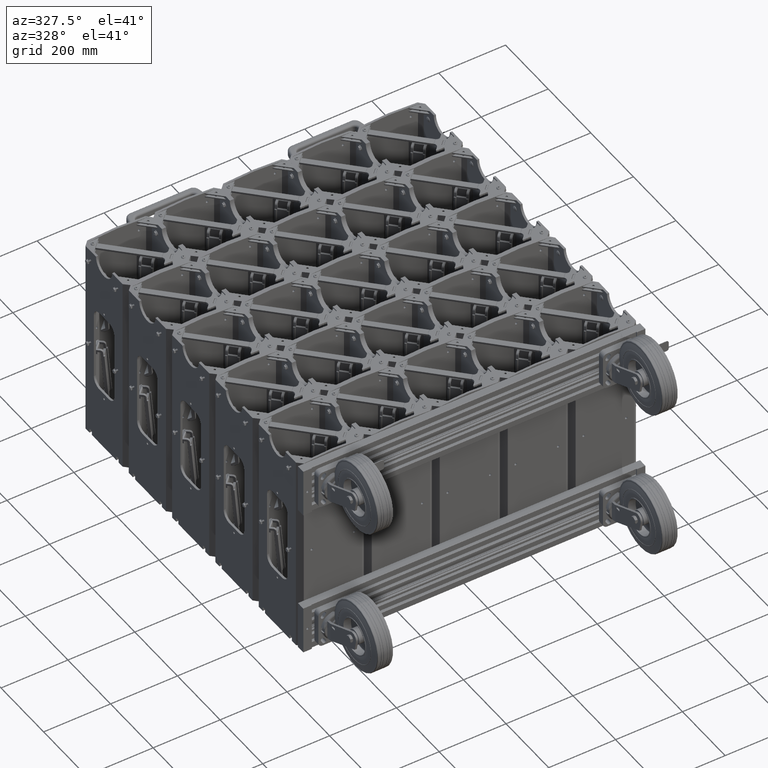
[diagram: clean part render]
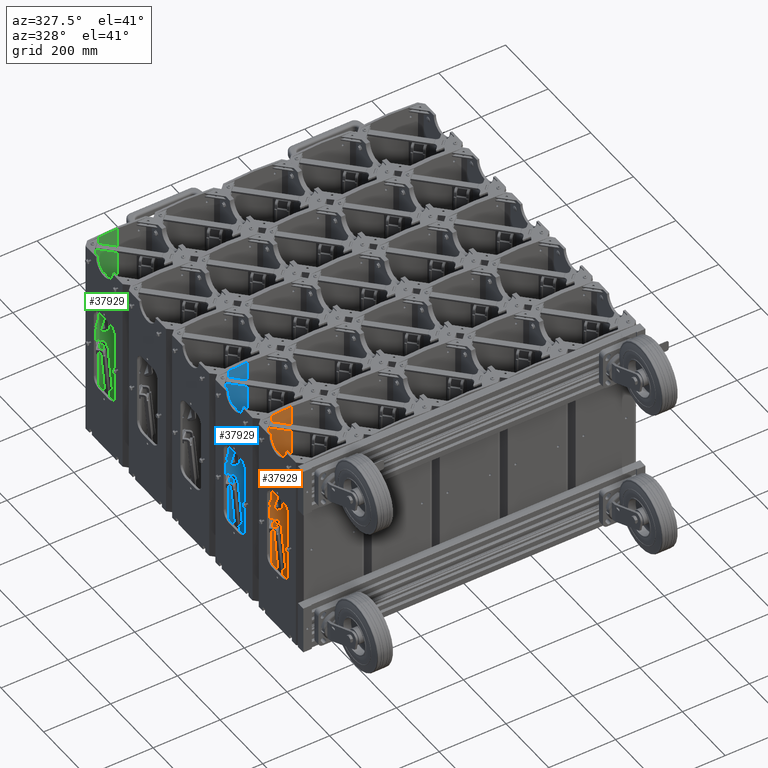
[diagram: same view with three faces highlighted in distinct colors, each labeled with its STEP entity id]
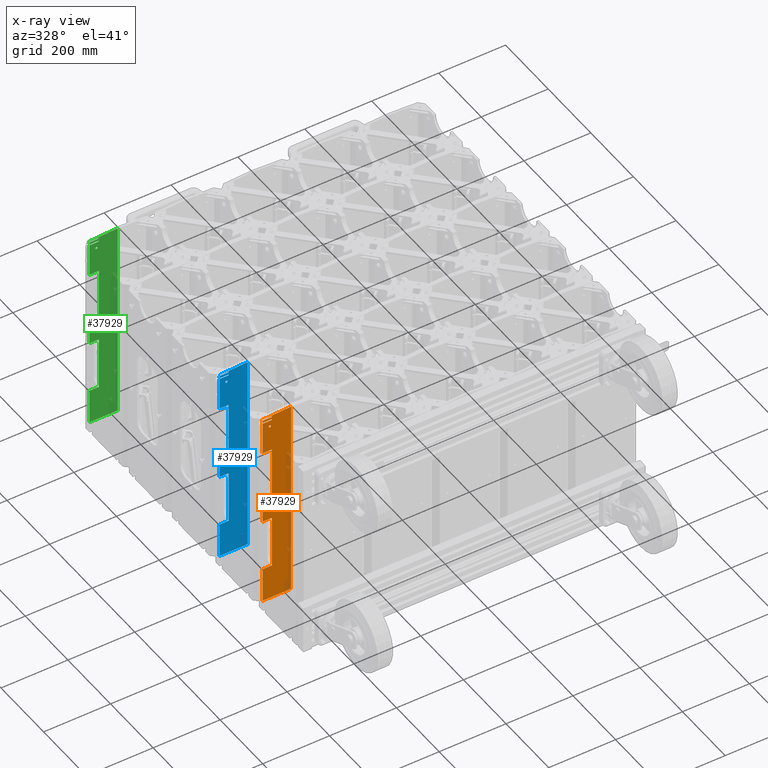
[diagram: x-ray of the same camera — body ghosted, the three highlighted faces saturated]
A machine part, auxiliary view with three faces highlighted in distinct colors.
The next image is the same camera in x-ray (body ghosted, the three faces saturated) — at least one of them is partly hidden behind the body in this view.
Their STEP definitions:

[orange] entity #37929 — the highlighted planar face has unit normal (-0, -1, -0).
#2273 = CIRCLE ( 'NONE', #42122, 0.1330000000000004800 ) ;
#2285 = CIRCLE ( 'NONE', #42127, 0.1329999999999999200 ) ;
#2338 = LINE ( 'NONE', #3950, #2340 ) ;
#2340 = VECTOR ( 'NONE', #3959, 39.37007874015748100 ) ;
#2343 = LINE ( 'NONE', #3964, #2352 ) ;
#2345 = LINE ( 'NONE', #3970, #2353 ) ;
#2347 = LINE ( 'NONE', #3988, #2372 ) ;
#2352 = VECTOR ( 'NONE', #3972, 39.37007874015748100 ) ;
#2353 = VECTOR ( 'NONE', #3974, 39.37007874015748100 ) ;
#2354 = LINE ( 'NONE', #3984, #2360 ) ;
#2355 = LINE ( 'NONE', #3975, #2356 ) ;
#2356 = VECTOR ( 'NONE', #3976, 39.37007874015748900 ) ;
#2357 = LINE ( 'NONE', #3977, #2358 ) ;
#2358 = VECTOR ( 'NONE', #3978, 39.37007874015748100 ) ;
#2359 = LINE ( 'NONE', #3986, #2366 ) ;
#2360 = VECTOR ( 'NONE', #3985, 39.37007874015748100 ) ;
#2361 = CIRCLE ( 'NONE', #42147, 0.1329999999999999200 ) ;
#2362 = LINE ( 'NONE', #3979, #2364 ) ;
#2363 = CIRCLE ( 'NONE', #42146, 0.1330000000000004800 ) ;
#2364 = VECTOR ( 'NONE', #3987, 39.37007874015748100 ) ;
#2365 = LINE ( 'NONE', #3994, #2374 ) ;
#2366 = VECTOR ( 'NONE', #3989, 39.37007874015748100 ) ;
#2367 = LINE ( 'NONE', #3996, #2376 ) ;
#2368 = LINE ( 'NONE', #3990, #2369 ) ;
#2369 = VECTOR ( 'NONE', #3991, 39.37007874015748100 ) ;
#2370 = LINE ( 'NONE', #3992, #2371 ) ;
#2371 = VECTOR ( 'NONE', #3993, 39.37007874015748100 ) ;
#2372 = VECTOR ( 'NONE', #3995, 39.37007874015748100 ) ;
#2373 = LINE ( 'NONE', #3998, #2384 ) ;
#2374 = VECTOR ( 'NONE', #3997, 39.37007874015748100 ) ;
#2376 = VECTOR ( 'NONE', #3999, 39.37007874015748100 ) ;
#2378 = LINE ( 'NONE', #4000, #2379 ) ;
#2379 = VECTOR ( 'NONE', #4001, 39.37007874015748100 ) ;
#2380 = LINE ( 'NONE', #4002, #2381 ) ;
#2381 = VECTOR ( 'NONE', #4003, 39.37007874015748100 ) ;
#2382 = LINE ( 'NONE', #4004, #2383 ) ;
#2383 = VECTOR ( 'NONE', #4005, 39.37007874015748100 ) ;
#2384 = VECTOR ( 'NONE', #4007, 39.37007874015748100 ) ;
#2386 = LINE ( 'NONE', #4008, #2387 ) ;
#2387 = VECTOR ( 'NONE', #4009, 39.37007874015748100 ) ;
#2388 = LINE ( 'NONE', #4010, #2389 ) ;
#2389 = VECTOR ( 'NONE', #4011, 39.37007874015748100 ) ;
#2390 = LINE ( 'NONE', #4012, #2391 ) ;
#2391 = VECTOR ( 'NONE', #4013, 39.37007874015748100 ) ;
#3798 = CARTESIAN_POINT ( 'NONE',  ( 3.750000000000002200, -2.500000000000039500, -0.1745312500000002200 ) ) ;
#3800 = DIRECTION ( 'NONE',  ( -1.000000000000000000, -1.365923996832082300E-016, 0.0000000000000000000 ) ) ;
#3802 = DIRECTION ( 'NONE',  ( 0.0000000000000000000, -1.000000000000000000, 0.0000000000000000000 ) ) ;
#3842 = CARTESIAN_POINT ( 'NONE',  ( 3.750000000000251400, -2.500000000000039500, -10.67453124999990000 ) ) ;
#3845 = DIRECTION ( 'NONE',  ( -1.000000000000000000, -1.365923996832082300E-016, 0.0000000000000000000 ) ) ;
#3847 = DIRECTION ( 'NONE',  ( 0.0000000000000000000, -1.000000000000000000, 0.0000000000000000000 ) ) ;
#3950 = CARTESIAN_POINT ( 'NONE',  ( 3.749999999999976000, -6.556435184794231400E-014, 12.10500000000010000 ) ) ;
#3959 = DIRECTION ( 'NONE',  ( 0.0000000000000000000, 0.0000000000000000000, -1.000000000000000000 ) ) ;
#3964 = CARTESIAN_POINT ( 'NONE',  ( 3.750000000000142100, -2.240846073967664800, -11.40812499999990100 ) ) ;
#3970 = CARTESIAN_POINT ( 'NONE',  ( 3.750000000000225200, -3.333946609406774900, -11.90812499999990100 ) ) ;
#3971 = CARTESIAN_POINT ( 'NONE',  ( 3.750000000000002200, -2.500000000000039500, -0.1745312500000002200 ) ) ;
#3972 = DIRECTION ( 'NONE',  ( 0.0000000000000000000, 0.0000000000000000000, -1.000000000000000000 ) ) ;
#3973 = CARTESIAN_POINT ( 'NONE',  ( 3.750000000000251400, -2.500000000000039500, -10.67453124999990000 ) ) ;
#3974 = DIRECTION ( 'NONE',  ( -4.930380657631323800E-030, 1.000000000000000000, 1.094764425253763300E-047 ) ) ;
#3975 = CARTESIAN_POINT ( 'NONE',  ( 3.750000000000212300, -4.000000000000048800, -11.89499999999990000 ) ) ;
#3976 = DIRECTION ( 'NONE',  ( -1.364045465210469600E-016, 0.9986247173150795100, -0.05242779765904170800 ) ) ;
#3977 = CARTESIAN_POINT ( 'NONE',  ( 3.749999999999818800, 3.999999999999948500, 11.85500000000010000 ) ) ;
#3978 = DIRECTION ( 'NONE',  ( -1.365923996832180900E-016, 1.000000000000000000, 1.094764425253763300E-047 ) ) ;
#3979 = CARTESIAN_POINT ( 'NONE',  ( 3.750000000000225200, -3.333946609406774900, -11.79112499999990000 ) ) ;
#3980 = DIRECTION ( 'NONE',  ( -1.000000000000000000, -1.365923996832082300E-016, 0.0000000000000000000 ) ) ;
#3981 = DIRECTION ( 'NONE',  ( 0.0000000000000000000, -1.000000000000000000, 0.0000000000000000000 ) ) ;
#3982 = DIRECTION ( 'NONE',  ( -1.000000000000000000, -1.365923996832082300E-016, 0.0000000000000000000 ) ) ;
#3983 = DIRECTION ( 'NONE',  ( 0.0000000000000000000, -1.000000000000000000, 0.0000000000000000000 ) ) ;
#3984 = CARTESIAN_POINT ( 'NONE',  ( 3.749999999999976000, -3.333946609406774900, 12.10500000000010000 ) ) ;
#3985 = DIRECTION ( 'NONE',  ( -0.0000000000000000000, -0.0000000000000000000, -1.000000000000000000 ) ) ;
#3986 = CARTESIAN_POINT ( 'NONE',  ( 3.750000000000225200, -3.333946609406774900, -11.79112499999990000 ) ) ;
#3987 = DIRECTION ( 'NONE',  ( -4.930380657631323800E-030, 1.000000000000000000, 1.094764425253763300E-047 ) ) ;
#3988 = CARTESIAN_POINT ( 'NONE',  ( 3.750000000000225200, -3.333946609406774900, -11.40812499999990100 ) ) ;
#3989 = DIRECTION ( 'NONE',  ( 0.0000000000000000000, 0.0000000000000000000, 1.000000000000000000 ) ) ;
#3990 = CARTESIAN_POINT ( 'NONE',  ( 3.750000000000225200, -3.333946609406774900, -11.52512499999990000 ) ) ;
#3991 = DIRECTION ( 'NONE',  ( -4.930380657631323800E-030, 1.000000000000000000, 1.094764425253763300E-047 ) ) ;
#3992 = CARTESIAN_POINT ( 'NONE',  ( 3.750000000000142100, -2.240846073967664800, -11.40812499999990100 ) ) ;
#3993 = DIRECTION ( 'NONE',  ( 0.0000000000000000000, 0.0000000000000000000, -1.000000000000000000 ) ) ;
#3994 = CARTESIAN_POINT ( 'NONE',  ( 3.749999999999976000, -3.333946609406774900, 12.10500000000010000 ) ) ;
#3995 = DIRECTION ( 'NONE',  ( -4.930380657631323800E-030, 1.000000000000000000, 1.094764425253763300E-047 ) ) ;
#3996 = CARTESIAN_POINT ( 'NONE',  ( 3.749999999999971600, -3.333946609406774900, -7.533125000000018700 ) ) ;
#3997 = DIRECTION ( 'NONE',  ( -0.0000000000000000000, -0.0000000000000000000, -1.000000000000000000 ) ) ;
#3998 = CARTESIAN_POINT ( 'NONE',  ( 3.750000000000032900, -3.333946609406774900, 1.466875000000000800 ) ) ;
#3999 = DIRECTION ( 'NONE',  ( -4.930380657631323800E-030, 1.000000000000000000, 1.094764425253763300E-047 ) ) ;
#4000 = CARTESIAN_POINT ( 'NONE',  ( 3.749999999999980500, -2.240846073967664800, -1.283124999999999200 ) ) ;
#4001 = DIRECTION ( 'NONE',  ( 0.0000000000000000000, 0.0000000000000000000, -1.000000000000000000 ) ) ;
#4002 = CARTESIAN_POINT ( 'NONE',  ( 3.750000000000002200, -3.333946609406774900, -1.283124999999999200 ) ) ;
#4003 = DIRECTION ( 'NONE',  ( -4.930380657631323800E-030, 1.000000000000000000, 1.094764425253763300E-047 ) ) ;
#4004 = CARTESIAN_POINT ( 'NONE',  ( 3.749999999999976000, -3.333946609406774900, 12.10500000000010000 ) ) ;
#4005 = DIRECTION ( 'NONE',  ( -0.0000000000000000000, -0.0000000000000000000, -1.000000000000000000 ) ) ;
#4007 = DIRECTION ( 'NONE',  ( -4.930380657631323800E-030, 1.000000000000000000, 1.094764425253763300E-047 ) ) ;
#4008 = CARTESIAN_POINT ( 'NONE',  ( 3.750000000000137700, -2.240846073967664800, 7.716874999999981300 ) ) ;
#4009 = DIRECTION ( 'NONE',  ( 0.0000000000000000000, 0.0000000000000000000, -1.000000000000000000 ) ) ;
#4010 = CARTESIAN_POINT ( 'NONE',  ( 3.750000000000225200, -3.333946609406774900, 7.716874999999981300 ) ) ;
#4011 = DIRECTION ( 'NONE',  ( -4.930380657631323800E-030, 1.000000000000000000, 1.094764425253763300E-047 ) ) ;
#4012 = CARTESIAN_POINT ( 'NONE',  ( 3.749999999999976000, -3.333946609406774900, 12.10500000000010000 ) ) ;
#4013 = DIRECTION ( 'NONE',  ( -0.0000000000000000000, -0.0000000000000000000, -1.000000000000000000 ) ) ;
#6786 = FACE_BOUND ( 'NONE', #27257, .T. ) ;
#6793 = FACE_BOUND ( 'NONE', #31813, .T. ) ;
#6795 = FACE_OUTER_BOUND ( 'NONE', #31820, .T. ) ;
#8275 = CARTESIAN_POINT ( 'NONE',  ( 3.749999999999818800, 3.999999999999948500, 12.10500000000010000 ) ) ;
#8282 = PLANE ( 'NONE',  #8948 ) ;
#8283 = DIRECTION ( 'NONE',  ( -1.000000000000000000, -1.365923996832180900E-016, -1.079521069386805600E-076 ) ) ;
#8284 = DIRECTION ( 'NONE',  ( 1.365923996832180900E-016, -1.000000000000000000, -1.094764425253763300E-047 ) ) ;
#8948 = AXIS2_PLACEMENT_3D ( 'NONE', #8275, #8283, #8284 ) ;
#18635 = VERTEX_POINT ( 'NONE', #33816 ) ;
#18636 = VERTEX_POINT ( 'NONE', #33817 ) ;
#18643 = VERTEX_POINT ( 'NONE', #33824 ) ;
#18644 = VERTEX_POINT ( 'NONE', #33825 ) ;
#18674 = VERTEX_POINT ( 'NONE', #33855 ) ;
#18675 = VERTEX_POINT ( 'NONE', #33856 ) ;
#18677 = VERTEX_POINT ( 'NONE', #33858 ) ;
#19539 = VERTEX_POINT ( 'NONE', #34198 ) ;
#19540 = VERTEX_POINT ( 'NONE', #34202 ) ;
#19541 = VERTEX_POINT ( 'NONE', #34203 ) ;
#19542 = VERTEX_POINT ( 'NONE', #34204 ) ;
#19543 = VERTEX_POINT ( 'NONE', #34205 ) ;
#19544 = VERTEX_POINT ( 'NONE', #34206 ) ;
#19545 = VERTEX_POINT ( 'NONE', #34207 ) ;
#19546 = VERTEX_POINT ( 'NONE', #34208 ) ;
#19547 = VERTEX_POINT ( 'NONE', #34201 ) ;
#19548 = VERTEX_POINT ( 'NONE', #34209 ) ;
#19549 = VERTEX_POINT ( 'NONE', #34210 ) ;
#19550 = VERTEX_POINT ( 'NONE', #34211 ) ;
#19551 = VERTEX_POINT ( 'NONE', #34212 ) ;
#19552 = VERTEX_POINT ( 'NONE', #34213 ) ;
#19553 = VERTEX_POINT ( 'NONE', #34214 ) ;
#21231 = VERTEX_POINT ( 'NONE', #34862 ) ;
#21232 = VERTEX_POINT ( 'NONE', #34865 ) ;
#27257 = EDGE_LOOP ( 'NONE', ( #30701, #30703 ) ) ;
#29101 = EDGE_CURVE ( 'NONE', #18635, #18636, #2273, .T. ) ;
#29109 = EDGE_CURVE ( 'NONE', #18643, #18644, #2285, .T. ) ;
#29145 = EDGE_CURVE ( 'NONE', #18675, #18674, #2338, .T. ) ;
#29151 = EDGE_CURVE ( 'NONE', #19540, #19539, #2343, .T. ) ;
#29152 = EDGE_CURVE ( 'NONE', #21232, #19539, #2345, .T. ) ;
#29153 = EDGE_CURVE ( 'NONE', #21231, #18674, #2355, .T. ) ;
#29154 = EDGE_CURVE ( 'NONE', #18677, #18675, #2357, .T. ) ;
#29155 = EDGE_CURVE ( 'NONE', #18644, #18643, #2361, .T. ) ;
#29156 = EDGE_CURVE ( 'NONE', #18636, #18635, #2363, .T. ) ;
#29157 = EDGE_CURVE ( 'NONE', #21232, #21231, #2354, .T. ) ;
#29158 = EDGE_CURVE ( 'NONE', #19541, #19540, #2362, .T. ) ;
#29159 = EDGE_CURVE ( 'NONE', #19541, #19542, #2359, .T. ) ;
#29160 = EDGE_CURVE ( 'NONE', #19542, #19543, #2368, .T. ) ;
#29161 = EDGE_CURVE ( 'NONE', #19544, #19543, #2370, .T. ) ;
#29162 = EDGE_CURVE ( 'NONE', #19545, #19544, #2347, .T. ) ;
#29163 = EDGE_CURVE ( 'NONE', #19546, #19545, #2365, .T. ) ;
#29164 = EDGE_CURVE ( 'NONE', #19546, #19547, #2367, .T. ) ;
#29165 = EDGE_CURVE ( 'NONE', #19548, #19547, #2378, .T. ) ;
#29166 = EDGE_CURVE ( 'NONE', #19549, #19548, #2380, .T. ) ;
#29167 = EDGE_CURVE ( 'NONE', #19550, #19549, #2382, .T. ) ;
#29168 = EDGE_CURVE ( 'NONE', #19550, #19551, #2373, .T. ) ;
#29169 = EDGE_CURVE ( 'NONE', #19552, #19551, #2386, .T. ) ;
#29170 = EDGE_CURVE ( 'NONE', #19553, #19552, #2388, .T. ) ;
#29171 = EDGE_CURVE ( 'NONE', #18677, #19553, #2390, .T. ) ;
#30701 = ORIENTED_EDGE ( 'NONE', *, *, #29155, .F. ) ;
#30703 = ORIENTED_EDGE ( 'NONE', *, *, #29109, .F. ) ;
#30705 = ORIENTED_EDGE ( 'NONE', *, *, #29156, .F. ) ;
#30707 = ORIENTED_EDGE ( 'NONE', *, *, #29101, .F. ) ;
#30709 = ORIENTED_EDGE ( 'NONE', *, *, #29154, .T. ) ;
#30711 = ORIENTED_EDGE ( 'NONE', *, *, #29145, .T. ) ;
#30713 = ORIENTED_EDGE ( 'NONE', *, *, #29153, .F. ) ;
#30715 = ORIENTED_EDGE ( 'NONE', *, *, #29157, .F. ) ;
#30717 = ORIENTED_EDGE ( 'NONE', *, *, #29152, .T. ) ;
#30719 = ORIENTED_EDGE ( 'NONE', *, *, #29151, .F. ) ;
#30721 = ORIENTED_EDGE ( 'NONE', *, *, #29158, .F. ) ;
#30723 = ORIENTED_EDGE ( 'NONE', *, *, #29159, .T. ) ;
#30725 = ORIENTED_EDGE ( 'NONE', *, *, #29160, .T. ) ;
#30727 = ORIENTED_EDGE ( 'NONE', *, *, #29161, .F. ) ;
#30729 = ORIENTED_EDGE ( 'NONE', *, *, #29162, .F. ) ;
#30730 = ORIENTED_EDGE ( 'NONE', *, *, #29163, .F. ) ;
#30732 = ORIENTED_EDGE ( 'NONE', *, *, #29164, .T. ) ;
#30734 = ORIENTED_EDGE ( 'NONE', *, *, #29165, .F. ) ;
#30735 = ORIENTED_EDGE ( 'NONE', *, *, #29166, .F. ) ;
#30737 = ORIENTED_EDGE ( 'NONE', *, *, #29167, .F. ) ;
#30739 = ORIENTED_EDGE ( 'NONE', *, *, #29168, .T. ) ;
#30741 = ORIENTED_EDGE ( 'NONE', *, *, #29169, .F. ) ;
#30743 = ORIENTED_EDGE ( 'NONE', *, *, #29170, .F. ) ;
#30745 = ORIENTED_EDGE ( 'NONE', *, *, #29171, .F. ) ;
#31813 = EDGE_LOOP ( 'NONE', ( #30705, #30707 ) ) ;
#31820 = EDGE_LOOP ( 'NONE', ( #30709, #30711, #30713, #30715, #30717, #30719, #30721, #30723, #30725, #30727, #30729, #30730, #30732, #30734, #30735, #30737, #30739, #30741, #30743, #30745 ) ) ;
#33816 = CARTESIAN_POINT ( 'NONE',  ( 3.750000000000002200, -2.367000000000039100, -0.1745312500000018000 ) ) ;
#33817 = CARTESIAN_POINT ( 'NONE',  ( 3.750000000000002200, -2.633000000000040000, -0.1745312500000002200 ) ) ;
#33824 = CARTESIAN_POINT ( 'NONE',  ( 3.750000000000251400, -2.367000000000040000, -10.67453124999990000 ) ) ;
#33825 = CARTESIAN_POINT ( 'NONE',  ( 3.750000000000251400, -2.633000000000039500, -10.67453124999990000 ) ) ;
#33855 = CARTESIAN_POINT ( 'NONE',  ( 3.750000000000002200, -6.556435184794231400E-014, -12.10499999999989900 ) ) ;
#33856 = CARTESIAN_POINT ( 'NONE',  ( 3.749999999999976000, -6.556435184794231400E-014, 11.85500000000010000 ) ) ;
#33858 = CARTESIAN_POINT ( 'NONE',  ( 3.749999999999976000, -3.333946609406774900, 11.85500000000010000 ) ) ;
#34198 = CARTESIAN_POINT ( 'NONE',  ( 3.750000000000142100, -2.240846073967664800, -11.90812499999990100 ) ) ;
#34201 = CARTESIAN_POINT ( 'NONE',  ( 3.749999999999971600, -2.240846073967664800, -7.533125000000018700 ) ) ;
#34202 = CARTESIAN_POINT ( 'NONE',  ( 3.750000000000142100, -2.240846073967664800, -11.79112499999990000 ) ) ;
#34203 = CARTESIAN_POINT ( 'NONE',  ( 3.750000000000225200, -3.333946609406774900, -11.79112499999990000 ) ) ;
#34204 = CARTESIAN_POINT ( 'NONE',  ( 3.750000000000225200, -3.333946609406774900, -11.52512499999990000 ) ) ;
#34205 = CARTESIAN_POINT ( 'NONE',  ( 3.750000000000142100, -2.240846073967664800, -11.52512499999990000 ) ) ;
#34206 = CARTESIAN_POINT ( 'NONE',  ( 3.750000000000142100, -2.240846073967664800, -11.40812499999990200 ) ) ;
#34207 = CARTESIAN_POINT ( 'NONE',  ( 3.750000000000225200, -3.333946609406774900, -11.40812499999990200 ) ) ;
#34208 = CARTESIAN_POINT ( 'NONE',  ( 3.749999999999971600, -3.333946609406774900, -7.533125000000018700 ) ) ;
#34209 = CARTESIAN_POINT ( 'NONE',  ( 3.749999999999980500, -2.240846073967664800, -1.283124999999999200 ) ) ;
#34210 = CARTESIAN_POINT ( 'NONE',  ( 3.750000000000002200, -3.333946609406774900, -1.283124999999999200 ) ) ;
#34211 = CARTESIAN_POINT ( 'NONE',  ( 3.750000000000032900, -3.333946609406774900, 1.466875000000001900 ) ) ;
#34212 = CARTESIAN_POINT ( 'NONE',  ( 3.750000000000028400, -2.240846073967664800, 1.466875000000000800 ) ) ;
#34213 = CARTESIAN_POINT ( 'NONE',  ( 3.750000000000137700, -2.240846073967664800, 7.716874999999981300 ) ) ;
#34214 = CARTESIAN_POINT ( 'NONE',  ( 3.750000000000225200, -3.333946609406774900, 7.716874999999981300 ) ) ;
#34862 = CARTESIAN_POINT ( 'NONE',  ( 3.750000000000225200, -3.333946609406774900, -11.92996780300604500 ) ) ;
#34865 = CARTESIAN_POINT ( 'NONE',  ( 3.750000000000225200, -3.333946609406774900, -11.90812499999990100 ) ) ;
#37929 = ADVANCED_FACE ( 'NONE', ( #6786, #6793, #6795 ), #8282, .T. ) ;
#42122 = AXIS2_PLACEMENT_3D ( 'NONE', #3798, #3800, #3802 ) ;
#42127 = AXIS2_PLACEMENT_3D ( 'NONE', #3842, #3845, #3847 ) ;
#42146 = AXIS2_PLACEMENT_3D ( 'NONE', #3971, #3982, #3983 ) ;
#42147 = AXIS2_PLACEMENT_3D ( 'NONE', #3973, #3980, #3981 ) ;

[blue] entity #37929 — the highlighted planar face has unit normal (-0, -1, -0).
#2273 = CIRCLE ( 'NONE', #42122, 0.1330000000000004800 ) ;
#2285 = CIRCLE ( 'NONE', #42127, 0.1329999999999999200 ) ;
#2338 = LINE ( 'NONE', #3950, #2340 ) ;
#2340 = VECTOR ( 'NONE', #3959, 39.37007874015748100 ) ;
#2343 = LINE ( 'NONE', #3964, #2352 ) ;
#2345 = LINE ( 'NONE', #3970, #2353 ) ;
#2347 = LINE ( 'NONE', #3988, #2372 ) ;
#2352 = VECTOR ( 'NONE', #3972, 39.37007874015748100 ) ;
#2353 = VECTOR ( 'NONE', #3974, 39.37007874015748100 ) ;
#2354 = LINE ( 'NONE', #3984, #2360 ) ;
#2355 = LINE ( 'NONE', #3975, #2356 ) ;
#2356 = VECTOR ( 'NONE', #3976, 39.37007874015748900 ) ;
#2357 = LINE ( 'NONE', #3977, #2358 ) ;
#2358 = VECTOR ( 'NONE', #3978, 39.37007874015748100 ) ;
#2359 = LINE ( 'NONE', #3986, #2366 ) ;
#2360 = VECTOR ( 'NONE', #3985, 39.37007874015748100 ) ;
#2361 = CIRCLE ( 'NONE', #42147, 0.1329999999999999200 ) ;
#2362 = LINE ( 'NONE', #3979, #2364 ) ;
#2363 = CIRCLE ( 'NONE', #42146, 0.1330000000000004800 ) ;
#2364 = VECTOR ( 'NONE', #3987, 39.37007874015748100 ) ;
#2365 = LINE ( 'NONE', #3994, #2374 ) ;
#2366 = VECTOR ( 'NONE', #3989, 39.37007874015748100 ) ;
#2367 = LINE ( 'NONE', #3996, #2376 ) ;
#2368 = LINE ( 'NONE', #3990, #2369 ) ;
#2369 = VECTOR ( 'NONE', #3991, 39.37007874015748100 ) ;
#2370 = LINE ( 'NONE', #3992, #2371 ) ;
#2371 = VECTOR ( 'NONE', #3993, 39.37007874015748100 ) ;
#2372 = VECTOR ( 'NONE', #3995, 39.37007874015748100 ) ;
#2373 = LINE ( 'NONE', #3998, #2384 ) ;
#2374 = VECTOR ( 'NONE', #3997, 39.37007874015748100 ) ;
#2376 = VECTOR ( 'NONE', #3999, 39.37007874015748100 ) ;
#2378 = LINE ( 'NONE', #4000, #2379 ) ;
#2379 = VECTOR ( 'NONE', #4001, 39.37007874015748100 ) ;
#2380 = LINE ( 'NONE', #4002, #2381 ) ;
#2381 = VECTOR ( 'NONE', #4003, 39.37007874015748100 ) ;
#2382 = LINE ( 'NONE', #4004, #2383 ) ;
#2383 = VECTOR ( 'NONE', #4005, 39.37007874015748100 ) ;
#2384 = VECTOR ( 'NONE', #4007, 39.37007874015748100 ) ;
#2386 = LINE ( 'NONE', #4008, #2387 ) ;
#2387 = VECTOR ( 'NONE', #4009, 39.37007874015748100 ) ;
#2388 = LINE ( 'NONE', #4010, #2389 ) ;
#2389 = VECTOR ( 'NONE', #4011, 39.37007874015748100 ) ;
#2390 = LINE ( 'NONE', #4012, #2391 ) ;
#2391 = VECTOR ( 'NONE', #4013, 39.37007874015748100 ) ;
#3798 = CARTESIAN_POINT ( 'NONE',  ( 3.750000000000002200, -2.500000000000039500, -0.1745312500000002200 ) ) ;
#3800 = DIRECTION ( 'NONE',  ( -1.000000000000000000, -1.365923996832082300E-016, 0.0000000000000000000 ) ) ;
#3802 = DIRECTION ( 'NONE',  ( 0.0000000000000000000, -1.000000000000000000, 0.0000000000000000000 ) ) ;
#3842 = CARTESIAN_POINT ( 'NONE',  ( 3.750000000000251400, -2.500000000000039500, -10.67453124999990000 ) ) ;
#3845 = DIRECTION ( 'NONE',  ( -1.000000000000000000, -1.365923996832082300E-016, 0.0000000000000000000 ) ) ;
#3847 = DIRECTION ( 'NONE',  ( 0.0000000000000000000, -1.000000000000000000, 0.0000000000000000000 ) ) ;
#3950 = CARTESIAN_POINT ( 'NONE',  ( 3.749999999999976000, -6.556435184794231400E-014, 12.10500000000010000 ) ) ;
#3959 = DIRECTION ( 'NONE',  ( 0.0000000000000000000, 0.0000000000000000000, -1.000000000000000000 ) ) ;
#3964 = CARTESIAN_POINT ( 'NONE',  ( 3.750000000000142100, -2.240846073967664800, -11.40812499999990100 ) ) ;
#3970 = CARTESIAN_POINT ( 'NONE',  ( 3.750000000000225200, -3.333946609406774900, -11.90812499999990100 ) ) ;
#3971 = CARTESIAN_POINT ( 'NONE',  ( 3.750000000000002200, -2.500000000000039500, -0.1745312500000002200 ) ) ;
#3972 = DIRECTION ( 'NONE',  ( 0.0000000000000000000, 0.0000000000000000000, -1.000000000000000000 ) ) ;
#3973 = CARTESIAN_POINT ( 'NONE',  ( 3.750000000000251400, -2.500000000000039500, -10.67453124999990000 ) ) ;
#3974 = DIRECTION ( 'NONE',  ( -4.930380657631323800E-030, 1.000000000000000000, 1.094764425253763300E-047 ) ) ;
#3975 = CARTESIAN_POINT ( 'NONE',  ( 3.750000000000212300, -4.000000000000048800, -11.89499999999990000 ) ) ;
#3976 = DIRECTION ( 'NONE',  ( -1.364045465210469600E-016, 0.9986247173150795100, -0.05242779765904170800 ) ) ;
#3977 = CARTESIAN_POINT ( 'NONE',  ( 3.749999999999818800, 3.999999999999948500, 11.85500000000010000 ) ) ;
#3978 = DIRECTION ( 'NONE',  ( -1.365923996832180900E-016, 1.000000000000000000, 1.094764425253763300E-047 ) ) ;
#3979 = CARTESIAN_POINT ( 'NONE',  ( 3.750000000000225200, -3.333946609406774900, -11.79112499999990000 ) ) ;
#3980 = DIRECTION ( 'NONE',  ( -1.000000000000000000, -1.365923996832082300E-016, 0.0000000000000000000 ) ) ;
#3981 = DIRECTION ( 'NONE',  ( 0.0000000000000000000, -1.000000000000000000, 0.0000000000000000000 ) ) ;
#3982 = DIRECTION ( 'NONE',  ( -1.000000000000000000, -1.365923996832082300E-016, 0.0000000000000000000 ) ) ;
#3983 = DIRECTION ( 'NONE',  ( 0.0000000000000000000, -1.000000000000000000, 0.0000000000000000000 ) ) ;
#3984 = CARTESIAN_POINT ( 'NONE',  ( 3.749999999999976000, -3.333946609406774900, 12.10500000000010000 ) ) ;
#3985 = DIRECTION ( 'NONE',  ( -0.0000000000000000000, -0.0000000000000000000, -1.000000000000000000 ) ) ;
#3986 = CARTESIAN_POINT ( 'NONE',  ( 3.750000000000225200, -3.333946609406774900, -11.79112499999990000 ) ) ;
#3987 = DIRECTION ( 'NONE',  ( -4.930380657631323800E-030, 1.000000000000000000, 1.094764425253763300E-047 ) ) ;
#3988 = CARTESIAN_POINT ( 'NONE',  ( 3.750000000000225200, -3.333946609406774900, -11.40812499999990100 ) ) ;
#3989 = DIRECTION ( 'NONE',  ( 0.0000000000000000000, 0.0000000000000000000, 1.000000000000000000 ) ) ;
#3990 = CARTESIAN_POINT ( 'NONE',  ( 3.750000000000225200, -3.333946609406774900, -11.52512499999990000 ) ) ;
#3991 = DIRECTION ( 'NONE',  ( -4.930380657631323800E-030, 1.000000000000000000, 1.094764425253763300E-047 ) ) ;
#3992 = CARTESIAN_POINT ( 'NONE',  ( 3.750000000000142100, -2.240846073967664800, -11.40812499999990100 ) ) ;
#3993 = DIRECTION ( 'NONE',  ( 0.0000000000000000000, 0.0000000000000000000, -1.000000000000000000 ) ) ;
#3994 = CARTESIAN_POINT ( 'NONE',  ( 3.749999999999976000, -3.333946609406774900, 12.10500000000010000 ) ) ;
#3995 = DIRECTION ( 'NONE',  ( -4.930380657631323800E-030, 1.000000000000000000, 1.094764425253763300E-047 ) ) ;
#3996 = CARTESIAN_POINT ( 'NONE',  ( 3.749999999999971600, -3.333946609406774900, -7.533125000000018700 ) ) ;
#3997 = DIRECTION ( 'NONE',  ( -0.0000000000000000000, -0.0000000000000000000, -1.000000000000000000 ) ) ;
#3998 = CARTESIAN_POINT ( 'NONE',  ( 3.750000000000032900, -3.333946609406774900, 1.466875000000000800 ) ) ;
#3999 = DIRECTION ( 'NONE',  ( -4.930380657631323800E-030, 1.000000000000000000, 1.094764425253763300E-047 ) ) ;
#4000 = CARTESIAN_POINT ( 'NONE',  ( 3.749999999999980500, -2.240846073967664800, -1.283124999999999200 ) ) ;
#4001 = DIRECTION ( 'NONE',  ( 0.0000000000000000000, 0.0000000000000000000, -1.000000000000000000 ) ) ;
#4002 = CARTESIAN_POINT ( 'NONE',  ( 3.750000000000002200, -3.333946609406774900, -1.283124999999999200 ) ) ;
#4003 = DIRECTION ( 'NONE',  ( -4.930380657631323800E-030, 1.000000000000000000, 1.094764425253763300E-047 ) ) ;
#4004 = CARTESIAN_POINT ( 'NONE',  ( 3.749999999999976000, -3.333946609406774900, 12.10500000000010000 ) ) ;
#4005 = DIRECTION ( 'NONE',  ( -0.0000000000000000000, -0.0000000000000000000, -1.000000000000000000 ) ) ;
#4007 = DIRECTION ( 'NONE',  ( -4.930380657631323800E-030, 1.000000000000000000, 1.094764425253763300E-047 ) ) ;
#4008 = CARTESIAN_POINT ( 'NONE',  ( 3.750000000000137700, -2.240846073967664800, 7.716874999999981300 ) ) ;
#4009 = DIRECTION ( 'NONE',  ( 0.0000000000000000000, 0.0000000000000000000, -1.000000000000000000 ) ) ;
#4010 = CARTESIAN_POINT ( 'NONE',  ( 3.750000000000225200, -3.333946609406774900, 7.716874999999981300 ) ) ;
#4011 = DIRECTION ( 'NONE',  ( -4.930380657631323800E-030, 1.000000000000000000, 1.094764425253763300E-047 ) ) ;
#4012 = CARTESIAN_POINT ( 'NONE',  ( 3.749999999999976000, -3.333946609406774900, 12.10500000000010000 ) ) ;
#4013 = DIRECTION ( 'NONE',  ( -0.0000000000000000000, -0.0000000000000000000, -1.000000000000000000 ) ) ;
#6786 = FACE_BOUND ( 'NONE', #27257, .T. ) ;
#6793 = FACE_BOUND ( 'NONE', #31813, .T. ) ;
#6795 = FACE_OUTER_BOUND ( 'NONE', #31820, .T. ) ;
#8275 = CARTESIAN_POINT ( 'NONE',  ( 3.749999999999818800, 3.999999999999948500, 12.10500000000010000 ) ) ;
#8282 = PLANE ( 'NONE',  #8948 ) ;
#8283 = DIRECTION ( 'NONE',  ( -1.000000000000000000, -1.365923996832180900E-016, -1.079521069386805600E-076 ) ) ;
#8284 = DIRECTION ( 'NONE',  ( 1.365923996832180900E-016, -1.000000000000000000, -1.094764425253763300E-047 ) ) ;
#8948 = AXIS2_PLACEMENT_3D ( 'NONE', #8275, #8283, #8284 ) ;
#18635 = VERTEX_POINT ( 'NONE', #33816 ) ;
#18636 = VERTEX_POINT ( 'NONE', #33817 ) ;
#18643 = VERTEX_POINT ( 'NONE', #33824 ) ;
#18644 = VERTEX_POINT ( 'NONE', #33825 ) ;
#18674 = VERTEX_POINT ( 'NONE', #33855 ) ;
#18675 = VERTEX_POINT ( 'NONE', #33856 ) ;
#18677 = VERTEX_POINT ( 'NONE', #33858 ) ;
#19539 = VERTEX_POINT ( 'NONE', #34198 ) ;
#19540 = VERTEX_POINT ( 'NONE', #34202 ) ;
#19541 = VERTEX_POINT ( 'NONE', #34203 ) ;
#19542 = VERTEX_POINT ( 'NONE', #34204 ) ;
#19543 = VERTEX_POINT ( 'NONE', #34205 ) ;
#19544 = VERTEX_POINT ( 'NONE', #34206 ) ;
#19545 = VERTEX_POINT ( 'NONE', #34207 ) ;
#19546 = VERTEX_POINT ( 'NONE', #34208 ) ;
#19547 = VERTEX_POINT ( 'NONE', #34201 ) ;
#19548 = VERTEX_POINT ( 'NONE', #34209 ) ;
#19549 = VERTEX_POINT ( 'NONE', #34210 ) ;
#19550 = VERTEX_POINT ( 'NONE', #34211 ) ;
#19551 = VERTEX_POINT ( 'NONE', #34212 ) ;
#19552 = VERTEX_POINT ( 'NONE', #34213 ) ;
#19553 = VERTEX_POINT ( 'NONE', #34214 ) ;
#21231 = VERTEX_POINT ( 'NONE', #34862 ) ;
#21232 = VERTEX_POINT ( 'NONE', #34865 ) ;
#27257 = EDGE_LOOP ( 'NONE', ( #30701, #30703 ) ) ;
#29101 = EDGE_CURVE ( 'NONE', #18635, #18636, #2273, .T. ) ;
#29109 = EDGE_CURVE ( 'NONE', #18643, #18644, #2285, .T. ) ;
#29145 = EDGE_CURVE ( 'NONE', #18675, #18674, #2338, .T. ) ;
#29151 = EDGE_CURVE ( 'NONE', #19540, #19539, #2343, .T. ) ;
#29152 = EDGE_CURVE ( 'NONE', #21232, #19539, #2345, .T. ) ;
#29153 = EDGE_CURVE ( 'NONE', #21231, #18674, #2355, .T. ) ;
#29154 = EDGE_CURVE ( 'NONE', #18677, #18675, #2357, .T. ) ;
#29155 = EDGE_CURVE ( 'NONE', #18644, #18643, #2361, .T. ) ;
#29156 = EDGE_CURVE ( 'NONE', #18636, #18635, #2363, .T. ) ;
#29157 = EDGE_CURVE ( 'NONE', #21232, #21231, #2354, .T. ) ;
#29158 = EDGE_CURVE ( 'NONE', #19541, #19540, #2362, .T. ) ;
#29159 = EDGE_CURVE ( 'NONE', #19541, #19542, #2359, .T. ) ;
#29160 = EDGE_CURVE ( 'NONE', #19542, #19543, #2368, .T. ) ;
#29161 = EDGE_CURVE ( 'NONE', #19544, #19543, #2370, .T. ) ;
#29162 = EDGE_CURVE ( 'NONE', #19545, #19544, #2347, .T. ) ;
#29163 = EDGE_CURVE ( 'NONE', #19546, #19545, #2365, .T. ) ;
#29164 = EDGE_CURVE ( 'NONE', #19546, #19547, #2367, .T. ) ;
#29165 = EDGE_CURVE ( 'NONE', #19548, #19547, #2378, .T. ) ;
#29166 = EDGE_CURVE ( 'NONE', #19549, #19548, #2380, .T. ) ;
#29167 = EDGE_CURVE ( 'NONE', #19550, #19549, #2382, .T. ) ;
#29168 = EDGE_CURVE ( 'NONE', #19550, #19551, #2373, .T. ) ;
#29169 = EDGE_CURVE ( 'NONE', #19552, #19551, #2386, .T. ) ;
#29170 = EDGE_CURVE ( 'NONE', #19553, #19552, #2388, .T. ) ;
#29171 = EDGE_CURVE ( 'NONE', #18677, #19553, #2390, .T. ) ;
#30701 = ORIENTED_EDGE ( 'NONE', *, *, #29155, .F. ) ;
#30703 = ORIENTED_EDGE ( 'NONE', *, *, #29109, .F. ) ;
#30705 = ORIENTED_EDGE ( 'NONE', *, *, #29156, .F. ) ;
#30707 = ORIENTED_EDGE ( 'NONE', *, *, #29101, .F. ) ;
#30709 = ORIENTED_EDGE ( 'NONE', *, *, #29154, .T. ) ;
#30711 = ORIENTED_EDGE ( 'NONE', *, *, #29145, .T. ) ;
#30713 = ORIENTED_EDGE ( 'NONE', *, *, #29153, .F. ) ;
#30715 = ORIENTED_EDGE ( 'NONE', *, *, #29157, .F. ) ;
#30717 = ORIENTED_EDGE ( 'NONE', *, *, #29152, .T. ) ;
#30719 = ORIENTED_EDGE ( 'NONE', *, *, #29151, .F. ) ;
#30721 = ORIENTED_EDGE ( 'NONE', *, *, #29158, .F. ) ;
#30723 = ORIENTED_EDGE ( 'NONE', *, *, #29159, .T. ) ;
#30725 = ORIENTED_EDGE ( 'NONE', *, *, #29160, .T. ) ;
#30727 = ORIENTED_EDGE ( 'NONE', *, *, #29161, .F. ) ;
#30729 = ORIENTED_EDGE ( 'NONE', *, *, #29162, .F. ) ;
#30730 = ORIENTED_EDGE ( 'NONE', *, *, #29163, .F. ) ;
#30732 = ORIENTED_EDGE ( 'NONE', *, *, #29164, .T. ) ;
#30734 = ORIENTED_EDGE ( 'NONE', *, *, #29165, .F. ) ;
#30735 = ORIENTED_EDGE ( 'NONE', *, *, #29166, .F. ) ;
#30737 = ORIENTED_EDGE ( 'NONE', *, *, #29167, .F. ) ;
#30739 = ORIENTED_EDGE ( 'NONE', *, *, #29168, .T. ) ;
#30741 = ORIENTED_EDGE ( 'NONE', *, *, #29169, .F. ) ;
#30743 = ORIENTED_EDGE ( 'NONE', *, *, #29170, .F. ) ;
#30745 = ORIENTED_EDGE ( 'NONE', *, *, #29171, .F. ) ;
#31813 = EDGE_LOOP ( 'NONE', ( #30705, #30707 ) ) ;
#31820 = EDGE_LOOP ( 'NONE', ( #30709, #30711, #30713, #30715, #30717, #30719, #30721, #30723, #30725, #30727, #30729, #30730, #30732, #30734, #30735, #30737, #30739, #30741, #30743, #30745 ) ) ;
#33816 = CARTESIAN_POINT ( 'NONE',  ( 3.750000000000002200, -2.367000000000039100, -0.1745312500000018000 ) ) ;
#33817 = CARTESIAN_POINT ( 'NONE',  ( 3.750000000000002200, -2.633000000000040000, -0.1745312500000002200 ) ) ;
#33824 = CARTESIAN_POINT ( 'NONE',  ( 3.750000000000251400, -2.367000000000040000, -10.67453124999990000 ) ) ;
#33825 = CARTESIAN_POINT ( 'NONE',  ( 3.750000000000251400, -2.633000000000039500, -10.67453124999990000 ) ) ;
#33855 = CARTESIAN_POINT ( 'NONE',  ( 3.750000000000002200, -6.556435184794231400E-014, -12.10499999999989900 ) ) ;
#33856 = CARTESIAN_POINT ( 'NONE',  ( 3.749999999999976000, -6.556435184794231400E-014, 11.85500000000010000 ) ) ;
#33858 = CARTESIAN_POINT ( 'NONE',  ( 3.749999999999976000, -3.333946609406774900, 11.85500000000010000 ) ) ;
#34198 = CARTESIAN_POINT ( 'NONE',  ( 3.750000000000142100, -2.240846073967664800, -11.90812499999990100 ) ) ;
#34201 = CARTESIAN_POINT ( 'NONE',  ( 3.749999999999971600, -2.240846073967664800, -7.533125000000018700 ) ) ;
#34202 = CARTESIAN_POINT ( 'NONE',  ( 3.750000000000142100, -2.240846073967664800, -11.79112499999990000 ) ) ;
#34203 = CARTESIAN_POINT ( 'NONE',  ( 3.750000000000225200, -3.333946609406774900, -11.79112499999990000 ) ) ;
#34204 = CARTESIAN_POINT ( 'NONE',  ( 3.750000000000225200, -3.333946609406774900, -11.52512499999990000 ) ) ;
#34205 = CARTESIAN_POINT ( 'NONE',  ( 3.750000000000142100, -2.240846073967664800, -11.52512499999990000 ) ) ;
#34206 = CARTESIAN_POINT ( 'NONE',  ( 3.750000000000142100, -2.240846073967664800, -11.40812499999990200 ) ) ;
#34207 = CARTESIAN_POINT ( 'NONE',  ( 3.750000000000225200, -3.333946609406774900, -11.40812499999990200 ) ) ;
#34208 = CARTESIAN_POINT ( 'NONE',  ( 3.749999999999971600, -3.333946609406774900, -7.533125000000018700 ) ) ;
#34209 = CARTESIAN_POINT ( 'NONE',  ( 3.749999999999980500, -2.240846073967664800, -1.283124999999999200 ) ) ;
#34210 = CARTESIAN_POINT ( 'NONE',  ( 3.750000000000002200, -3.333946609406774900, -1.283124999999999200 ) ) ;
#34211 = CARTESIAN_POINT ( 'NONE',  ( 3.750000000000032900, -3.333946609406774900, 1.466875000000001900 ) ) ;
#34212 = CARTESIAN_POINT ( 'NONE',  ( 3.750000000000028400, -2.240846073967664800, 1.466875000000000800 ) ) ;
#34213 = CARTESIAN_POINT ( 'NONE',  ( 3.750000000000137700, -2.240846073967664800, 7.716874999999981300 ) ) ;
#34214 = CARTESIAN_POINT ( 'NONE',  ( 3.750000000000225200, -3.333946609406774900, 7.716874999999981300 ) ) ;
#34862 = CARTESIAN_POINT ( 'NONE',  ( 3.750000000000225200, -3.333946609406774900, -11.92996780300604500 ) ) ;
#34865 = CARTESIAN_POINT ( 'NONE',  ( 3.750000000000225200, -3.333946609406774900, -11.90812499999990100 ) ) ;
#37929 = ADVANCED_FACE ( 'NONE', ( #6786, #6793, #6795 ), #8282, .T. ) ;
#42122 = AXIS2_PLACEMENT_3D ( 'NONE', #3798, #3800, #3802 ) ;
#42127 = AXIS2_PLACEMENT_3D ( 'NONE', #3842, #3845, #3847 ) ;
#42146 = AXIS2_PLACEMENT_3D ( 'NONE', #3971, #3982, #3983 ) ;
#42147 = AXIS2_PLACEMENT_3D ( 'NONE', #3973, #3980, #3981 ) ;

[green] entity #37929 — the highlighted planar face has unit normal (-0, -1, -0).
#2273 = CIRCLE ( 'NONE', #42122, 0.1330000000000004800 ) ;
#2285 = CIRCLE ( 'NONE', #42127, 0.1329999999999999200 ) ;
#2338 = LINE ( 'NONE', #3950, #2340 ) ;
#2340 = VECTOR ( 'NONE', #3959, 39.37007874015748100 ) ;
#2343 = LINE ( 'NONE', #3964, #2352 ) ;
#2345 = LINE ( 'NONE', #3970, #2353 ) ;
#2347 = LINE ( 'NONE', #3988, #2372 ) ;
#2352 = VECTOR ( 'NONE', #3972, 39.37007874015748100 ) ;
#2353 = VECTOR ( 'NONE', #3974, 39.37007874015748100 ) ;
#2354 = LINE ( 'NONE', #3984, #2360 ) ;
#2355 = LINE ( 'NONE', #3975, #2356 ) ;
#2356 = VECTOR ( 'NONE', #3976, 39.37007874015748900 ) ;
#2357 = LINE ( 'NONE', #3977, #2358 ) ;
#2358 = VECTOR ( 'NONE', #3978, 39.37007874015748100 ) ;
#2359 = LINE ( 'NONE', #3986, #2366 ) ;
#2360 = VECTOR ( 'NONE', #3985, 39.37007874015748100 ) ;
#2361 = CIRCLE ( 'NONE', #42147, 0.1329999999999999200 ) ;
#2362 = LINE ( 'NONE', #3979, #2364 ) ;
#2363 = CIRCLE ( 'NONE', #42146, 0.1330000000000004800 ) ;
#2364 = VECTOR ( 'NONE', #3987, 39.37007874015748100 ) ;
#2365 = LINE ( 'NONE', #3994, #2374 ) ;
#2366 = VECTOR ( 'NONE', #3989, 39.37007874015748100 ) ;
#2367 = LINE ( 'NONE', #3996, #2376 ) ;
#2368 = LINE ( 'NONE', #3990, #2369 ) ;
#2369 = VECTOR ( 'NONE', #3991, 39.37007874015748100 ) ;
#2370 = LINE ( 'NONE', #3992, #2371 ) ;
#2371 = VECTOR ( 'NONE', #3993, 39.37007874015748100 ) ;
#2372 = VECTOR ( 'NONE', #3995, 39.37007874015748100 ) ;
#2373 = LINE ( 'NONE', #3998, #2384 ) ;
#2374 = VECTOR ( 'NONE', #3997, 39.37007874015748100 ) ;
#2376 = VECTOR ( 'NONE', #3999, 39.37007874015748100 ) ;
#2378 = LINE ( 'NONE', #4000, #2379 ) ;
#2379 = VECTOR ( 'NONE', #4001, 39.37007874015748100 ) ;
#2380 = LINE ( 'NONE', #4002, #2381 ) ;
#2381 = VECTOR ( 'NONE', #4003, 39.37007874015748100 ) ;
#2382 = LINE ( 'NONE', #4004, #2383 ) ;
#2383 = VECTOR ( 'NONE', #4005, 39.37007874015748100 ) ;
#2384 = VECTOR ( 'NONE', #4007, 39.37007874015748100 ) ;
#2386 = LINE ( 'NONE', #4008, #2387 ) ;
#2387 = VECTOR ( 'NONE', #4009, 39.37007874015748100 ) ;
#2388 = LINE ( 'NONE', #4010, #2389 ) ;
#2389 = VECTOR ( 'NONE', #4011, 39.37007874015748100 ) ;
#2390 = LINE ( 'NONE', #4012, #2391 ) ;
#2391 = VECTOR ( 'NONE', #4013, 39.37007874015748100 ) ;
#3798 = CARTESIAN_POINT ( 'NONE',  ( 3.750000000000002200, -2.500000000000039500, -0.1745312500000002200 ) ) ;
#3800 = DIRECTION ( 'NONE',  ( -1.000000000000000000, -1.365923996832082300E-016, 0.0000000000000000000 ) ) ;
#3802 = DIRECTION ( 'NONE',  ( 0.0000000000000000000, -1.000000000000000000, 0.0000000000000000000 ) ) ;
#3842 = CARTESIAN_POINT ( 'NONE',  ( 3.750000000000251400, -2.500000000000039500, -10.67453124999990000 ) ) ;
#3845 = DIRECTION ( 'NONE',  ( -1.000000000000000000, -1.365923996832082300E-016, 0.0000000000000000000 ) ) ;
#3847 = DIRECTION ( 'NONE',  ( 0.0000000000000000000, -1.000000000000000000, 0.0000000000000000000 ) ) ;
#3950 = CARTESIAN_POINT ( 'NONE',  ( 3.749999999999976000, -6.556435184794231400E-014, 12.10500000000010000 ) ) ;
#3959 = DIRECTION ( 'NONE',  ( 0.0000000000000000000, 0.0000000000000000000, -1.000000000000000000 ) ) ;
#3964 = CARTESIAN_POINT ( 'NONE',  ( 3.750000000000142100, -2.240846073967664800, -11.40812499999990100 ) ) ;
#3970 = CARTESIAN_POINT ( 'NONE',  ( 3.750000000000225200, -3.333946609406774900, -11.90812499999990100 ) ) ;
#3971 = CARTESIAN_POINT ( 'NONE',  ( 3.750000000000002200, -2.500000000000039500, -0.1745312500000002200 ) ) ;
#3972 = DIRECTION ( 'NONE',  ( 0.0000000000000000000, 0.0000000000000000000, -1.000000000000000000 ) ) ;
#3973 = CARTESIAN_POINT ( 'NONE',  ( 3.750000000000251400, -2.500000000000039500, -10.67453124999990000 ) ) ;
#3974 = DIRECTION ( 'NONE',  ( -4.930380657631323800E-030, 1.000000000000000000, 1.094764425253763300E-047 ) ) ;
#3975 = CARTESIAN_POINT ( 'NONE',  ( 3.750000000000212300, -4.000000000000048800, -11.89499999999990000 ) ) ;
#3976 = DIRECTION ( 'NONE',  ( -1.364045465210469600E-016, 0.9986247173150795100, -0.05242779765904170800 ) ) ;
#3977 = CARTESIAN_POINT ( 'NONE',  ( 3.749999999999818800, 3.999999999999948500, 11.85500000000010000 ) ) ;
#3978 = DIRECTION ( 'NONE',  ( -1.365923996832180900E-016, 1.000000000000000000, 1.094764425253763300E-047 ) ) ;
#3979 = CARTESIAN_POINT ( 'NONE',  ( 3.750000000000225200, -3.333946609406774900, -11.79112499999990000 ) ) ;
#3980 = DIRECTION ( 'NONE',  ( -1.000000000000000000, -1.365923996832082300E-016, 0.0000000000000000000 ) ) ;
#3981 = DIRECTION ( 'NONE',  ( 0.0000000000000000000, -1.000000000000000000, 0.0000000000000000000 ) ) ;
#3982 = DIRECTION ( 'NONE',  ( -1.000000000000000000, -1.365923996832082300E-016, 0.0000000000000000000 ) ) ;
#3983 = DIRECTION ( 'NONE',  ( 0.0000000000000000000, -1.000000000000000000, 0.0000000000000000000 ) ) ;
#3984 = CARTESIAN_POINT ( 'NONE',  ( 3.749999999999976000, -3.333946609406774900, 12.10500000000010000 ) ) ;
#3985 = DIRECTION ( 'NONE',  ( -0.0000000000000000000, -0.0000000000000000000, -1.000000000000000000 ) ) ;
#3986 = CARTESIAN_POINT ( 'NONE',  ( 3.750000000000225200, -3.333946609406774900, -11.79112499999990000 ) ) ;
#3987 = DIRECTION ( 'NONE',  ( -4.930380657631323800E-030, 1.000000000000000000, 1.094764425253763300E-047 ) ) ;
#3988 = CARTESIAN_POINT ( 'NONE',  ( 3.750000000000225200, -3.333946609406774900, -11.40812499999990100 ) ) ;
#3989 = DIRECTION ( 'NONE',  ( 0.0000000000000000000, 0.0000000000000000000, 1.000000000000000000 ) ) ;
#3990 = CARTESIAN_POINT ( 'NONE',  ( 3.750000000000225200, -3.333946609406774900, -11.52512499999990000 ) ) ;
#3991 = DIRECTION ( 'NONE',  ( -4.930380657631323800E-030, 1.000000000000000000, 1.094764425253763300E-047 ) ) ;
#3992 = CARTESIAN_POINT ( 'NONE',  ( 3.750000000000142100, -2.240846073967664800, -11.40812499999990100 ) ) ;
#3993 = DIRECTION ( 'NONE',  ( 0.0000000000000000000, 0.0000000000000000000, -1.000000000000000000 ) ) ;
#3994 = CARTESIAN_POINT ( 'NONE',  ( 3.749999999999976000, -3.333946609406774900, 12.10500000000010000 ) ) ;
#3995 = DIRECTION ( 'NONE',  ( -4.930380657631323800E-030, 1.000000000000000000, 1.094764425253763300E-047 ) ) ;
#3996 = CARTESIAN_POINT ( 'NONE',  ( 3.749999999999971600, -3.333946609406774900, -7.533125000000018700 ) ) ;
#3997 = DIRECTION ( 'NONE',  ( -0.0000000000000000000, -0.0000000000000000000, -1.000000000000000000 ) ) ;
#3998 = CARTESIAN_POINT ( 'NONE',  ( 3.750000000000032900, -3.333946609406774900, 1.466875000000000800 ) ) ;
#3999 = DIRECTION ( 'NONE',  ( -4.930380657631323800E-030, 1.000000000000000000, 1.094764425253763300E-047 ) ) ;
#4000 = CARTESIAN_POINT ( 'NONE',  ( 3.749999999999980500, -2.240846073967664800, -1.283124999999999200 ) ) ;
#4001 = DIRECTION ( 'NONE',  ( 0.0000000000000000000, 0.0000000000000000000, -1.000000000000000000 ) ) ;
#4002 = CARTESIAN_POINT ( 'NONE',  ( 3.750000000000002200, -3.333946609406774900, -1.283124999999999200 ) ) ;
#4003 = DIRECTION ( 'NONE',  ( -4.930380657631323800E-030, 1.000000000000000000, 1.094764425253763300E-047 ) ) ;
#4004 = CARTESIAN_POINT ( 'NONE',  ( 3.749999999999976000, -3.333946609406774900, 12.10500000000010000 ) ) ;
#4005 = DIRECTION ( 'NONE',  ( -0.0000000000000000000, -0.0000000000000000000, -1.000000000000000000 ) ) ;
#4007 = DIRECTION ( 'NONE',  ( -4.930380657631323800E-030, 1.000000000000000000, 1.094764425253763300E-047 ) ) ;
#4008 = CARTESIAN_POINT ( 'NONE',  ( 3.750000000000137700, -2.240846073967664800, 7.716874999999981300 ) ) ;
#4009 = DIRECTION ( 'NONE',  ( 0.0000000000000000000, 0.0000000000000000000, -1.000000000000000000 ) ) ;
#4010 = CARTESIAN_POINT ( 'NONE',  ( 3.750000000000225200, -3.333946609406774900, 7.716874999999981300 ) ) ;
#4011 = DIRECTION ( 'NONE',  ( -4.930380657631323800E-030, 1.000000000000000000, 1.094764425253763300E-047 ) ) ;
#4012 = CARTESIAN_POINT ( 'NONE',  ( 3.749999999999976000, -3.333946609406774900, 12.10500000000010000 ) ) ;
#4013 = DIRECTION ( 'NONE',  ( -0.0000000000000000000, -0.0000000000000000000, -1.000000000000000000 ) ) ;
#6786 = FACE_BOUND ( 'NONE', #27257, .T. ) ;
#6793 = FACE_BOUND ( 'NONE', #31813, .T. ) ;
#6795 = FACE_OUTER_BOUND ( 'NONE', #31820, .T. ) ;
#8275 = CARTESIAN_POINT ( 'NONE',  ( 3.749999999999818800, 3.999999999999948500, 12.10500000000010000 ) ) ;
#8282 = PLANE ( 'NONE',  #8948 ) ;
#8283 = DIRECTION ( 'NONE',  ( -1.000000000000000000, -1.365923996832180900E-016, -1.079521069386805600E-076 ) ) ;
#8284 = DIRECTION ( 'NONE',  ( 1.365923996832180900E-016, -1.000000000000000000, -1.094764425253763300E-047 ) ) ;
#8948 = AXIS2_PLACEMENT_3D ( 'NONE', #8275, #8283, #8284 ) ;
#18635 = VERTEX_POINT ( 'NONE', #33816 ) ;
#18636 = VERTEX_POINT ( 'NONE', #33817 ) ;
#18643 = VERTEX_POINT ( 'NONE', #33824 ) ;
#18644 = VERTEX_POINT ( 'NONE', #33825 ) ;
#18674 = VERTEX_POINT ( 'NONE', #33855 ) ;
#18675 = VERTEX_POINT ( 'NONE', #33856 ) ;
#18677 = VERTEX_POINT ( 'NONE', #33858 ) ;
#19539 = VERTEX_POINT ( 'NONE', #34198 ) ;
#19540 = VERTEX_POINT ( 'NONE', #34202 ) ;
#19541 = VERTEX_POINT ( 'NONE', #34203 ) ;
#19542 = VERTEX_POINT ( 'NONE', #34204 ) ;
#19543 = VERTEX_POINT ( 'NONE', #34205 ) ;
#19544 = VERTEX_POINT ( 'NONE', #34206 ) ;
#19545 = VERTEX_POINT ( 'NONE', #34207 ) ;
#19546 = VERTEX_POINT ( 'NONE', #34208 ) ;
#19547 = VERTEX_POINT ( 'NONE', #34201 ) ;
#19548 = VERTEX_POINT ( 'NONE', #34209 ) ;
#19549 = VERTEX_POINT ( 'NONE', #34210 ) ;
#19550 = VERTEX_POINT ( 'NONE', #34211 ) ;
#19551 = VERTEX_POINT ( 'NONE', #34212 ) ;
#19552 = VERTEX_POINT ( 'NONE', #34213 ) ;
#19553 = VERTEX_POINT ( 'NONE', #34214 ) ;
#21231 = VERTEX_POINT ( 'NONE', #34862 ) ;
#21232 = VERTEX_POINT ( 'NONE', #34865 ) ;
#27257 = EDGE_LOOP ( 'NONE', ( #30701, #30703 ) ) ;
#29101 = EDGE_CURVE ( 'NONE', #18635, #18636, #2273, .T. ) ;
#29109 = EDGE_CURVE ( 'NONE', #18643, #18644, #2285, .T. ) ;
#29145 = EDGE_CURVE ( 'NONE', #18675, #18674, #2338, .T. ) ;
#29151 = EDGE_CURVE ( 'NONE', #19540, #19539, #2343, .T. ) ;
#29152 = EDGE_CURVE ( 'NONE', #21232, #19539, #2345, .T. ) ;
#29153 = EDGE_CURVE ( 'NONE', #21231, #18674, #2355, .T. ) ;
#29154 = EDGE_CURVE ( 'NONE', #18677, #18675, #2357, .T. ) ;
#29155 = EDGE_CURVE ( 'NONE', #18644, #18643, #2361, .T. ) ;
#29156 = EDGE_CURVE ( 'NONE', #18636, #18635, #2363, .T. ) ;
#29157 = EDGE_CURVE ( 'NONE', #21232, #21231, #2354, .T. ) ;
#29158 = EDGE_CURVE ( 'NONE', #19541, #19540, #2362, .T. ) ;
#29159 = EDGE_CURVE ( 'NONE', #19541, #19542, #2359, .T. ) ;
#29160 = EDGE_CURVE ( 'NONE', #19542, #19543, #2368, .T. ) ;
#29161 = EDGE_CURVE ( 'NONE', #19544, #19543, #2370, .T. ) ;
#29162 = EDGE_CURVE ( 'NONE', #19545, #19544, #2347, .T. ) ;
#29163 = EDGE_CURVE ( 'NONE', #19546, #19545, #2365, .T. ) ;
#29164 = EDGE_CURVE ( 'NONE', #19546, #19547, #2367, .T. ) ;
#29165 = EDGE_CURVE ( 'NONE', #19548, #19547, #2378, .T. ) ;
#29166 = EDGE_CURVE ( 'NONE', #19549, #19548, #2380, .T. ) ;
#29167 = EDGE_CURVE ( 'NONE', #19550, #19549, #2382, .T. ) ;
#29168 = EDGE_CURVE ( 'NONE', #19550, #19551, #2373, .T. ) ;
#29169 = EDGE_CURVE ( 'NONE', #19552, #19551, #2386, .T. ) ;
#29170 = EDGE_CURVE ( 'NONE', #19553, #19552, #2388, .T. ) ;
#29171 = EDGE_CURVE ( 'NONE', #18677, #19553, #2390, .T. ) ;
#30701 = ORIENTED_EDGE ( 'NONE', *, *, #29155, .F. ) ;
#30703 = ORIENTED_EDGE ( 'NONE', *, *, #29109, .F. ) ;
#30705 = ORIENTED_EDGE ( 'NONE', *, *, #29156, .F. ) ;
#30707 = ORIENTED_EDGE ( 'NONE', *, *, #29101, .F. ) ;
#30709 = ORIENTED_EDGE ( 'NONE', *, *, #29154, .T. ) ;
#30711 = ORIENTED_EDGE ( 'NONE', *, *, #29145, .T. ) ;
#30713 = ORIENTED_EDGE ( 'NONE', *, *, #29153, .F. ) ;
#30715 = ORIENTED_EDGE ( 'NONE', *, *, #29157, .F. ) ;
#30717 = ORIENTED_EDGE ( 'NONE', *, *, #29152, .T. ) ;
#30719 = ORIENTED_EDGE ( 'NONE', *, *, #29151, .F. ) ;
#30721 = ORIENTED_EDGE ( 'NONE', *, *, #29158, .F. ) ;
#30723 = ORIENTED_EDGE ( 'NONE', *, *, #29159, .T. ) ;
#30725 = ORIENTED_EDGE ( 'NONE', *, *, #29160, .T. ) ;
#30727 = ORIENTED_EDGE ( 'NONE', *, *, #29161, .F. ) ;
#30729 = ORIENTED_EDGE ( 'NONE', *, *, #29162, .F. ) ;
#30730 = ORIENTED_EDGE ( 'NONE', *, *, #29163, .F. ) ;
#30732 = ORIENTED_EDGE ( 'NONE', *, *, #29164, .T. ) ;
#30734 = ORIENTED_EDGE ( 'NONE', *, *, #29165, .F. ) ;
#30735 = ORIENTED_EDGE ( 'NONE', *, *, #29166, .F. ) ;
#30737 = ORIENTED_EDGE ( 'NONE', *, *, #29167, .F. ) ;
#30739 = ORIENTED_EDGE ( 'NONE', *, *, #29168, .T. ) ;
#30741 = ORIENTED_EDGE ( 'NONE', *, *, #29169, .F. ) ;
#30743 = ORIENTED_EDGE ( 'NONE', *, *, #29170, .F. ) ;
#30745 = ORIENTED_EDGE ( 'NONE', *, *, #29171, .F. ) ;
#31813 = EDGE_LOOP ( 'NONE', ( #30705, #30707 ) ) ;
#31820 = EDGE_LOOP ( 'NONE', ( #30709, #30711, #30713, #30715, #30717, #30719, #30721, #30723, #30725, #30727, #30729, #30730, #30732, #30734, #30735, #30737, #30739, #30741, #30743, #30745 ) ) ;
#33816 = CARTESIAN_POINT ( 'NONE',  ( 3.750000000000002200, -2.367000000000039100, -0.1745312500000018000 ) ) ;
#33817 = CARTESIAN_POINT ( 'NONE',  ( 3.750000000000002200, -2.633000000000040000, -0.1745312500000002200 ) ) ;
#33824 = CARTESIAN_POINT ( 'NONE',  ( 3.750000000000251400, -2.367000000000040000, -10.67453124999990000 ) ) ;
#33825 = CARTESIAN_POINT ( 'NONE',  ( 3.750000000000251400, -2.633000000000039500, -10.67453124999990000 ) ) ;
#33855 = CARTESIAN_POINT ( 'NONE',  ( 3.750000000000002200, -6.556435184794231400E-014, -12.10499999999989900 ) ) ;
#33856 = CARTESIAN_POINT ( 'NONE',  ( 3.749999999999976000, -6.556435184794231400E-014, 11.85500000000010000 ) ) ;
#33858 = CARTESIAN_POINT ( 'NONE',  ( 3.749999999999976000, -3.333946609406774900, 11.85500000000010000 ) ) ;
#34198 = CARTESIAN_POINT ( 'NONE',  ( 3.750000000000142100, -2.240846073967664800, -11.90812499999990100 ) ) ;
#34201 = CARTESIAN_POINT ( 'NONE',  ( 3.749999999999971600, -2.240846073967664800, -7.533125000000018700 ) ) ;
#34202 = CARTESIAN_POINT ( 'NONE',  ( 3.750000000000142100, -2.240846073967664800, -11.79112499999990000 ) ) ;
#34203 = CARTESIAN_POINT ( 'NONE',  ( 3.750000000000225200, -3.333946609406774900, -11.79112499999990000 ) ) ;
#34204 = CARTESIAN_POINT ( 'NONE',  ( 3.750000000000225200, -3.333946609406774900, -11.52512499999990000 ) ) ;
#34205 = CARTESIAN_POINT ( 'NONE',  ( 3.750000000000142100, -2.240846073967664800, -11.52512499999990000 ) ) ;
#34206 = CARTESIAN_POINT ( 'NONE',  ( 3.750000000000142100, -2.240846073967664800, -11.40812499999990200 ) ) ;
#34207 = CARTESIAN_POINT ( 'NONE',  ( 3.750000000000225200, -3.333946609406774900, -11.40812499999990200 ) ) ;
#34208 = CARTESIAN_POINT ( 'NONE',  ( 3.749999999999971600, -3.333946609406774900, -7.533125000000018700 ) ) ;
#34209 = CARTESIAN_POINT ( 'NONE',  ( 3.749999999999980500, -2.240846073967664800, -1.283124999999999200 ) ) ;
#34210 = CARTESIAN_POINT ( 'NONE',  ( 3.750000000000002200, -3.333946609406774900, -1.283124999999999200 ) ) ;
#34211 = CARTESIAN_POINT ( 'NONE',  ( 3.750000000000032900, -3.333946609406774900, 1.466875000000001900 ) ) ;
#34212 = CARTESIAN_POINT ( 'NONE',  ( 3.750000000000028400, -2.240846073967664800, 1.466875000000000800 ) ) ;
#34213 = CARTESIAN_POINT ( 'NONE',  ( 3.750000000000137700, -2.240846073967664800, 7.716874999999981300 ) ) ;
#34214 = CARTESIAN_POINT ( 'NONE',  ( 3.750000000000225200, -3.333946609406774900, 7.716874999999981300 ) ) ;
#34862 = CARTESIAN_POINT ( 'NONE',  ( 3.750000000000225200, -3.333946609406774900, -11.92996780300604500 ) ) ;
#34865 = CARTESIAN_POINT ( 'NONE',  ( 3.750000000000225200, -3.333946609406774900, -11.90812499999990100 ) ) ;
#37929 = ADVANCED_FACE ( 'NONE', ( #6786, #6793, #6795 ), #8282, .T. ) ;
#42122 = AXIS2_PLACEMENT_3D ( 'NONE', #3798, #3800, #3802 ) ;
#42127 = AXIS2_PLACEMENT_3D ( 'NONE', #3842, #3845, #3847 ) ;
#42146 = AXIS2_PLACEMENT_3D ( 'NONE', #3971, #3982, #3983 ) ;
#42147 = AXIS2_PLACEMENT_3D ( 'NONE', #3973, #3980, #3981 ) ;